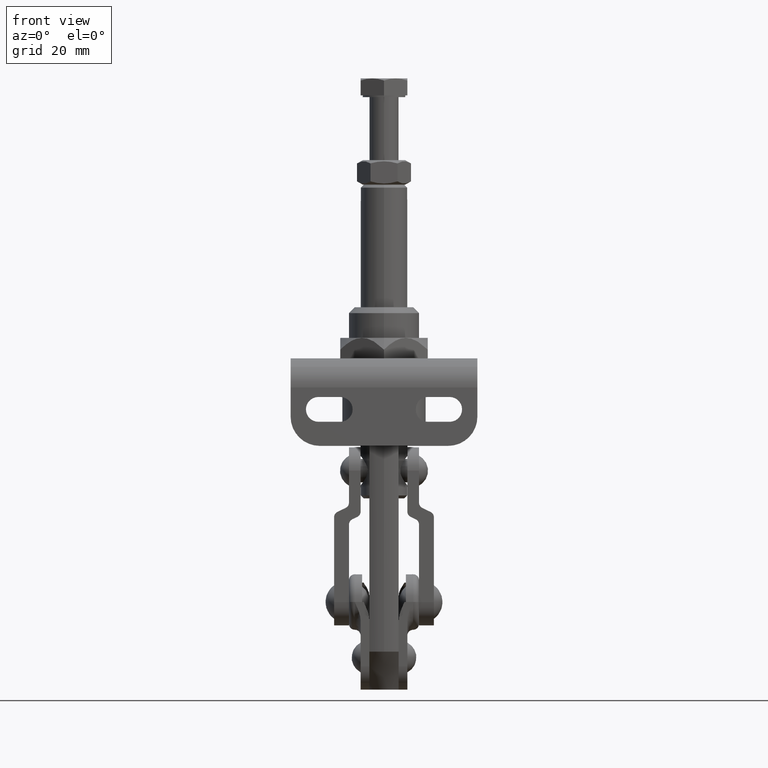
[diagram: clean part render]
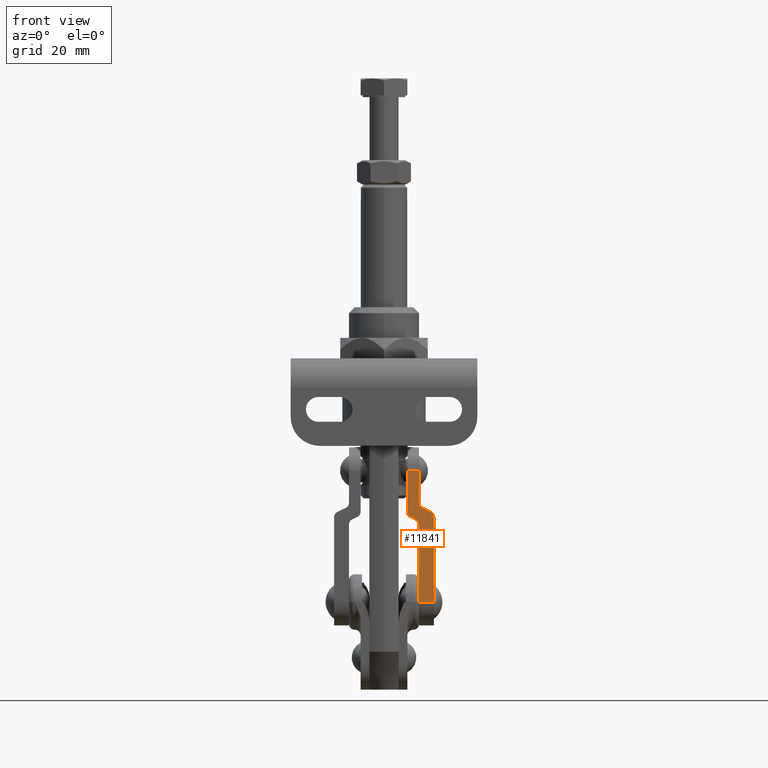
[diagram: same view with one face highlighted and labeled with its STEP entity id]
A machine part, front view. The second image highlights one B-rep face of the part: STEP entity #11841.
In plain terms, the highlighted planar face has unit normal (0, -1, 0).
Its self-contained STEP definition (entity closure, byte-faithful):
#10071=CARTESIAN_POINT('',(7.999999999999998,-7.991499683121626,-33.792646942146817));
#10072=VERTEX_POINT('',#10071);
#10080=CARTESIAN_POINT('',(12.000000000000002,-7.991499683121626,-33.792646942146817));
#10081=VERTEX_POINT('',#10080);
#10082=CARTESIAN_POINT('',(12.000000000000002,-7.991499683121626,-33.792646942146817));
#10083=DIRECTION('',(-1.0,0.0,0.0));
#10084=VECTOR('',#10083,4.000000000000004);
#10085=LINE('',#10082,#10084);
#10086=EDGE_CURVE('',#10081,#10072,#10085,.T.);
#11309=CARTESIAN_POINT('',(8.305367358774088,-8.686542011943315,-48.857933129478738));
#11310=VERTEX_POINT('',#11309);
#11328=CARTESIAN_POINT('',(9.128220211291660,-8.720545564503041,-49.594972054239939));
#11329=VERTEX_POINT('',#11328);
#11336=CARTESIAN_POINT('',(9.999999999999830,-8.637590162373270,-47.796884625537707));
#11337=DIRECTION('',(3.122502E-017,0.998937460390203,-0.046086334516543));
#11338=DIRECTION('',(-0.744527728718017,0.030766846925521,0.666882195219105));
#11339=AXIS2_PLACEMENT_3D('',#11336,#11337,#11338);
#11340=CIRCLE('',#11339,1.999999999999890);
#11341=EDGE_CURVE('',#11329,#11310,#11340,.T.);
#11351=CARTESIAN_POINT('',(16.794632641225824,-8.676870009367665,-48.648289082253896));
#11352=VERTEX_POINT('',#11351);
#11370=CARTESIAN_POINT('',(15.971779788708000,-8.642866456807926,-47.911250157492432));
#11371=VERTEX_POINT('',#11370);
#11378=CARTESIAN_POINT('',(15.100000000000051,-8.725821858937712,-49.709337586194955));
#11379=DIRECTION('',(3.122502E-017,0.998937460390203,-0.046086334516543));
#11380=DIRECTION('',(0.744527728718073,-0.030766846925518,-0.666882195219043));
#11381=AXIS2_PLACEMENT_3D('',#11378,#11379,#11380);
#11382=CIRCLE('',#11381,1.999999999999938);
#11383=EDGE_CURVE('',#11371,#11352,#11382,.T.);
#11395=CARTESIAN_POINT('',(11.694632641225777,-8.793466466210075,-51.175558167775193));
#11396=VERTEX_POINT('',#11395);
#11403=CARTESIAN_POINT('',(10.871779788708078,-8.759462913650348,-50.438519243013992));
#11404=VERTEX_POINT('',#11403);
#11405=CARTESIAN_POINT('',(9.999999999999842,-8.842418315780122,-52.236606671716302));
#11406=DIRECTION('',(-3.122502E-017,-0.998937460390203,0.046086334516543));
#11407=DIRECTION('',(-0.744527728717995,0.030766846925522,0.666882195219129));
#11408=AXIS2_PLACEMENT_3D('',#11405,#11406,#11407);
#11409=CIRCLE('',#11408,2.000000000000211);
#11410=EDGE_CURVE('',#11396,#11404,#11409,.T.);
#11437=CARTESIAN_POINT('',(12.305367358774093,-8.545392861509850,-45.798475801197895));
#11438=VERTEX_POINT('',#11437);
#11445=CARTESIAN_POINT('',(13.128220211291666,-8.579396414069588,-46.535514725959359));
#11446=VERTEX_POINT('',#11445);
#11447=CARTESIAN_POINT('',(13.999999999999886,-8.496441011939805,-44.737427297256801));
#11448=DIRECTION('',(-2.428613E-017,-0.998937460390203,0.046086334516543));
#11449=DIRECTION('',(0.744527728718035,-0.030766846925520,-0.666882195219084));
#11450=AXIS2_PLACEMENT_3D('',#11447,#11448,#11449);
#11451=CIRCLE('',#11450,1.999999999999965);
#11452=EDGE_CURVE('',#11438,#11446,#11451,.T.);
#11487=CARTESIAN_POINT('',(12.0,-8.496441011939805,-44.737427297256822));
#11488=VERTEX_POINT('',#11487);
#11495=CARTESIAN_POINT('',(13.999999999999860,-8.496441011939805,-44.737427297256829));
#11496=DIRECTION('',(-3.469447E-017,-0.998937460390203,0.046086334516543));
#11497=DIRECTION('',(0.276300270889376,-0.044292256222259,-0.960050184284759));
#11498=AXIS2_PLACEMENT_3D('',#11495,#11496,#11497);
#11499=CIRCLE('',#11498,1.999999999999927);
#11500=EDGE_CURVE('',#11488,#11438,#11499,.T.);
#11511=CARTESIAN_POINT('',(13.128220211291666,-8.579396414069588,-46.535514725959359));
#11512=DIRECTION('',(0.900000000000028,-0.020088567483579,-0.435426744075748));
#11513=VECTOR('',#11512,3.159510641573606);
#11514=LINE('',#11511,#11513);
#11515=EDGE_CURVE('',#11446,#11371,#11514,.T.);
#11542=CARTESIAN_POINT('',(11.999999999999996,-8.842418315780121,-52.236606671716274));
#11543=VERTEX_POINT('',#11542);
#11550=CARTESIAN_POINT('',(9.999999999999872,-8.842418315780121,-52.236606671716274));
#11551=DIRECTION('',(-3.469447E-017,-0.998937460390204,0.046086334516543));
#11552=DIRECTION('',(-0.276300270889377,0.044292256222259,0.960050184284759));
#11553=AXIS2_PLACEMENT_3D('',#11550,#11551,#11552);
#11554=CIRCLE('',#11553,2.000000000000159);
#11555=EDGE_CURVE('',#11543,#11396,#11554,.T.);
#11566=CARTESIAN_POINT('',(10.871779788708078,-8.759462913650348,-50.438519243013992));
#11567=DIRECTION('',(-0.899999999999994,0.020088567483582,0.435426744075819));
#11568=VECTOR('',#11567,1.937288419351590);
#11569=LINE('',#11566,#11568);
#11570=EDGE_CURVE('',#11404,#11329,#11569,.T.);
#11588=CARTESIAN_POINT('',(17.099999999999920,-8.725821858937712,-49.709337586194955));
#11589=VERTEX_POINT('',#11588);
#11590=CARTESIAN_POINT('',(15.100000000000055,-8.725821858937712,-49.709337586194955));
#11591=DIRECTION('',(3.642919E-017,0.998937460390204,-0.046086334516543));
#11592=DIRECTION('',(0.276300270889378,-0.044292256222259,-0.960050184284758));
#11593=AXIS2_PLACEMENT_3D('',#11590,#11591,#11592);
#11594=CIRCLE('',#11593,1.999999999999933);
#11595=EDGE_CURVE('',#11352,#11589,#11594,.T.);
#11621=CARTESIAN_POINT('',(17.099999999999916,-10.065384736366045,-78.744832659705807));
#11622=VERTEX_POINT('',#11621);
#11623=CARTESIAN_POINT('',(17.099999999999920,-8.725821858937712,-49.709337586194955));
#11624=DIRECTION('',(-1.222276E-016,-0.046086334516543,-0.998937460390203));
#11625=VECTOR('',#11624,29.066379252780301);
#11626=LINE('',#11623,#11625);
#11627=EDGE_CURVE('',#11589,#11622,#11626,.T.);
#11680=CARTESIAN_POINT('',(11.999999999999995,-10.065384736366045,-78.744832659705807));
#11681=VERTEX_POINT('',#11680);
#11689=CARTESIAN_POINT('',(11.999999999999995,-10.065384736366045,-78.744832659705807));
#11690=DIRECTION('',(6.694033E-017,0.046086334516543,0.998937460390204));
#11691=VECTOR('',#11690,26.536421987453476);
#11692=LINE('',#11689,#11691);
#11693=EDGE_CURVE('',#11681,#11543,#11692,.T.);
#11711=CARTESIAN_POINT('',(17.099999999999916,-10.065384736366045,-78.744832659705807));
#11712=DIRECTION('',(-1.0,0.0,0.0));
#11713=VECTOR('',#11712,5.099999999999922);
#11714=LINE('',#11711,#11713);
#11715=EDGE_CURVE('',#11622,#11681,#11714,.T.);
#11743=CARTESIAN_POINT('',(12.000000000000002,-7.991499683121626,-33.792646942146817));
#11744=DIRECTION('',(-1.621293E-016,-0.046086334516543,-0.998937460390203));
#11745=VECTOR('',#11744,10.956421987453320);
#11746=LINE('',#11743,#11745);
#11747=EDGE_CURVE('',#10081,#11488,#11746,.T.);
#11805=CARTESIAN_POINT('',(12.549999999999956,-9.028442209743835,-56.268739800926319));
#11806=DIRECTION('',(-3.200715E-017,-0.998937460390203,0.046086334516543));
#11807=DIRECTION('',(-1.0,0.0,0.0));
#11808=AXIS2_PLACEMENT_3D('',#11805,#11806,#11807);
#11809=PLANE('',#11808);
#11810=ORIENTED_EDGE('',*,*,#11383,.F.);
#11811=ORIENTED_EDGE('',*,*,#11515,.F.);
#11812=ORIENTED_EDGE('',*,*,#11452,.F.);
#11813=ORIENTED_EDGE('',*,*,#11500,.F.);
#11814=ORIENTED_EDGE('',*,*,#11747,.F.);
#11815=ORIENTED_EDGE('',*,*,#10086,.T.);
#11816=CARTESIAN_POINT('',(7.999999999999997,-8.637590162373268,-47.796884625537658));
#11817=VERTEX_POINT('',#11816);
#11818=CARTESIAN_POINT('',(7.999999999999998,-7.991499683121626,-33.792646942146817));
#11819=DIRECTION('',(-6.335473E-017,-0.046086334516543,-0.998937460390204));
#11820=VECTOR('',#11819,14.019133568101976);
#11821=LINE('',#11818,#11820);
#11822=EDGE_CURVE('',#10072,#11817,#11821,.T.);
#11823=ORIENTED_EDGE('',*,*,#11822,.T.);
#11824=CARTESIAN_POINT('',(9.999999999999885,-8.637590162373268,-47.796884625537658));
#11825=DIRECTION('',(-3.469447E-017,-0.998937460390204,0.046086334516543));
#11826=DIRECTION('',(-0.276300270889376,0.044292256222259,0.960050184284759));
#11827=AXIS2_PLACEMENT_3D('',#11824,#11825,#11826);
#11828=CIRCLE('',#11827,1.999999999999962);
#11829=EDGE_CURVE('',#11817,#11310,#11828,.T.);
#11830=ORIENTED_EDGE('',*,*,#11829,.T.);
#11831=ORIENTED_EDGE('',*,*,#11341,.F.);
#11832=ORIENTED_EDGE('',*,*,#11570,.F.);
#11833=ORIENTED_EDGE('',*,*,#11410,.F.);
#11834=ORIENTED_EDGE('',*,*,#11555,.F.);
#11835=ORIENTED_EDGE('',*,*,#11693,.F.);
#11836=ORIENTED_EDGE('',*,*,#11715,.F.);
#11837=ORIENTED_EDGE('',*,*,#11627,.F.);
#11838=ORIENTED_EDGE('',*,*,#11595,.F.);
#11839=EDGE_LOOP('',(#11810,#11811,#11812,#11813,#11814,#11815,#11823,#11830,#11831,#11832,#11833,#11834,#11835,#11836,#11837,#11838));
#11840=FACE_OUTER_BOUND('',#11839,.T.);
#11841=ADVANCED_FACE('',(#11840),#11809,.T.);